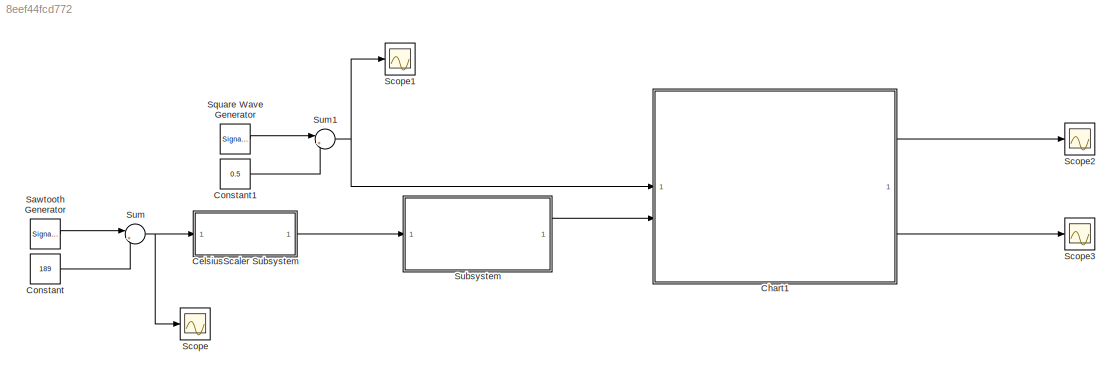
MODEL slx_8eef44fcd772
KIND model
CONFIG AbsTol = auto
CONFIG EnableMultiTasking = on
CONFIG FixedStep = 0.1
CONFIG MaxStep = auto
CONFIG MinStep = auto
CONFIG RelTol = 1e-3
CONFIG SampleTimeConstraint = Unconstrained
CONFIG SolverName = FixedStepDiscrete
CONFIG StartTime = 0.0
CONFIG StopTime = 20.0
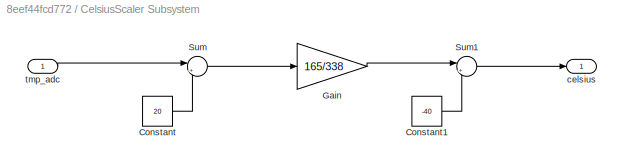
BLOCK [SubSystem] CelsiusScaler Subsystem
BLOCK [Constant] CelsiusScaler Subsystem/Constant
  Value = 20
BLOCK [Constant] CelsiusScaler Subsystem/Constant1
  Value = -40
BLOCK [Gain] CelsiusScaler Subsystem/Gain
  Gain = 165/338
BLOCK [Sum] CelsiusScaler Subsystem/Sum
  Inputs = |+-
BLOCK [Sum] CelsiusScaler Subsystem/Sum1
  Inputs = |++
BLOCK [Outport] CelsiusScaler Subsystem/celsius
BLOCK [Inport] CelsiusScaler Subsystem/tmp_adc
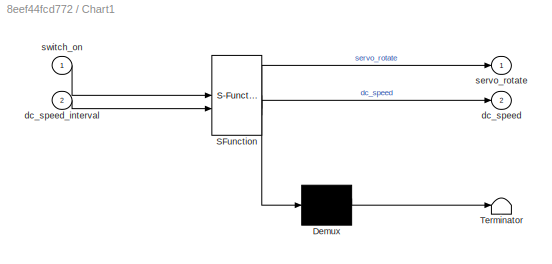
BLOCK [SubSystem] Chart1
  ErrorFcn = Stateflow.Translate.translate
  PermitHierarchicalResolution = ExplicitOnly
  SFBlockType = Chart
  TreatAsAtomicUnit = on
BLOCK [Demux] Chart1/ Demux 
  Outputs = 1
BLOCK [S-Function] Chart1/ SFunction 
  EnableBusSupport = on
  FunctionName = sf_sfun
  PortCounts = [2 3]
  SFcnIsStateOwnerBlock = off
  SFunctionDeploymentMode = off
  Tag = Stateflow S-Function 2
BLOCK [Terminator] Chart1/ Terminator 
BLOCK [Outport] Chart1/dc_speed
  Port = 2
BLOCK [Inport] Chart1/dc_speed_interval
  Port = 2
BLOCK [Outport] Chart1/servo_rotate
BLOCK [Inport] Chart1/switch_on
BLOCK [Constant] Constant
  Value = 189
BLOCK [Constant] Constant1
  Value = 0.5
BLOCK [SignalGenerator] Sawtooth Generator
  Amplitude = 169
  Frequency = 0.25
  WaveForm = sawtooth
BLOCK [Scope] Scope
  Floating = off
  NumInputPorts = 1
  ScopeSpecificationString = Simulink.scopes.TimeScopeBlockCfg('CurrentConfiguration', extmgr.ConfigurationSet(extmgr.Configuration('Core','General UI',true),extmgr.Configuration('Core','Source UI',true),extmgr.Configuration('Sources','WiredSimulink',true),extmgr.Configuration('Visuals','Time Domain',true,'SerializedDisplays',{struct('MinYLimReal','22.49262','MaxYLimReal','31.31053','YLabelReal','','MinYLimMag','22.49262','Ma...<+1460ch>
BLOCK [Scope] Scope1
  Floating = off
  NumInputPorts = 1
  ScopeSpecificationString = Simulink.scopes.TimeScopeBlockCfg('CurrentConfiguration', extmgr.ConfigurationSet(extmgr.Configuration('Core','General UI',true),extmgr.Configuration('Core','Source UI',true),extmgr.Configuration('Sources','WiredSimulink',true,'DataLoggingVariableName','ScopeData1'),extmgr.Configuration('Visuals','Time Domain',true,'SerializedDisplays',{struct('MinYLimReal','-0.125','MaxYLimReal','1.125','YLabelRe...<+1436ch>
BLOCK [Scope] Scope2
  Floating = off
  NumInputPorts = 1
  ScopeSpecificationString = Simulink.scopes.TimeScopeBlockCfg('CurrentConfiguration', extmgr.ConfigurationSet(extmgr.Configuration('Core','General UI',true),extmgr.Configuration('Core','Source UI',true),extmgr.Configuration('Sources','WiredSimulink',true,'DataLoggingVariableName','ScopeData1'),extmgr.Configuration('Visuals','Time Domain',true,'SerializedDisplays',{struct('MinYLimReal','-10','MaxYLimReal','10','YLabelReal',''...<+849ch>
BLOCK [Scope] Scope3
  Floating = off
  NumInputPorts = 1
  ScopeSpecificationString = Simulink.scopes.TimeScopeBlockCfg('CurrentConfiguration', extmgr.ConfigurationSet(extmgr.Configuration('Core','General UI',true),extmgr.Configuration('Core','Source UI',true),extmgr.Configuration('Sources','WiredSimulink',true,'DataLoggingVariableName','ScopeData2'),extmgr.Configuration('Visuals','Time Domain',true,'SerializedDisplays',{struct('MinYLimReal','-10','MaxYLimReal','10','YLabelReal',''...<+849ch>
BLOCK [SignalGenerator] Square Wave Generator
  Amplitude = 0.5
  Frequency = 0.5
  WaveForm = square
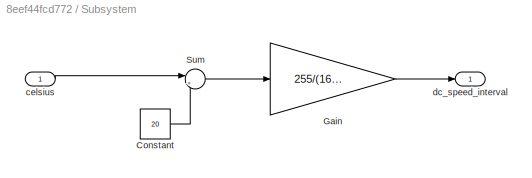
BLOCK [SubSystem] Subsystem
BLOCK [Constant] Subsystem/Constant
  Value = 20
BLOCK [Gain] Subsystem/Gain
  Gain = 255/(16530/60)
BLOCK [Sum] Subsystem/Sum
  Inputs = |+-
BLOCK [Inport] Subsystem/celsius
BLOCK [Outport] Subsystem/dc_speed_interval
BLOCK [Sum] Sum
  Inputs = |++
BLOCK [Sum] Sum1
  Inputs = |++
LINE CelsiusScaler Subsystem/Constant1:1 -> CelsiusScaler Subsystem/Sum1:2
LINE CelsiusScaler Subsystem/Constant:1 -> CelsiusScaler Subsystem/Sum:2
LINE CelsiusScaler Subsystem/Gain:1 -> CelsiusScaler Subsystem/Sum1:1
LINE CelsiusScaler Subsystem/Sum1:1 -> CelsiusScaler Subsystem/celsius:1
LINE CelsiusScaler Subsystem/Sum:1 -> CelsiusScaler Subsystem/Gain:1
LINE CelsiusScaler Subsystem/tmp_adc:1 -> CelsiusScaler Subsystem/Sum:1
LINE CelsiusScaler Subsystem:1 -> Subsystem:1
LINE Chart1:1 -> Scope2:1
LINE Chart1:2 -> Scope3:1
LINE Constant1:1 -> Sum1:2
LINE Constant:1 -> Sum:2
LINE Sawtooth Generator:1 -> Sum:1
LINE Square Wave Generator:1 -> Sum1:1
LINE Subsystem/Constant:1 -> Subsystem/Sum:2
LINE Subsystem/Gain:1 -> Subsystem/dc_speed_interval:1
LINE Subsystem/Sum:1 -> Subsystem/Gain:1
LINE Subsystem/celsius:1 -> Subsystem/Sum:1
LINE Subsystem:1 -> Chart1:2
NET Sum1:1 -> Chart1:1, Scope1:1
NET Sum:1 -> CelsiusScaler Subsystem:1, Scope:1
note: NET lines group one-source signal fan-out (src -> all destinations, sorted); 1:1 wires keep LINE
CHART Chart1 states=6 transitions=10
  STATE_LABEL 'DC_Motor'
  STATE_LABEL 'check'
  STATE_LABEL '[ctr_dc < (DC_PERIOD / STEP_SIZE) - 1]{ctr_dc = ctr_dc + 1}'
  STATE_LABEL '[ctr_dc >= (DC_PERIOD / STEP_SIZE) - 1]{dc_speed = dc_speed_interval; ctr_dc = 0;}'
  STATE_LABEL 'check'
  STATE_LABEL 'Servo_Motor'
  STATE_LABEL 'Natural'
  STATE_LABEL 'ClockWise'
  STATE_LABEL 'Counter_ClockWise'
  STATE_LABEL '[ctr_servo < ((SLOW_MODE_DURATION - (switch_on * (SLOW_MODE_DURATION - FAST_MODE_DURATION))) / STEP_SIZE) - 1]{ctr_servo = ctr_servo + 1}'
  STATE_LABEL '[ctr_servo >= (SERVO_MAX_ANGLE / SERVO_ANGLE_CHANGE) - 1]{servo_rotate = 0; ctr_servo = 0}'
  STATE_LABEL '[ctr_servo >= ((SLOW_MODE_DURATION - (switch_on * (SLOW_MODE_DURATION - FAST_MODE_DURATION))) / STEP_SIZE) - 1]{servo_rotate = 1; ctr_servo = 0}'
  STATE_LABEL '[ctr_servo < (SERVO_MAX_ANGLE / SERVO_ANGLE_CHANGE) - 1]{ctr_servo = ctr_servo + 1}'
  STATE_LABEL '[ctr_servo >= (SERVO_MAX_ANGLE / SERVO_ANGLE_CHANGE) - 1]{servo_rotate = -1; ctr_servo = 0}'
  STATE_LABEL '[ctr_servo < (SERVO_MAX_ANGLE / SERVO_ANGLE_CHANGE) - 1]{ctr_servo = ctr_servo + 1}'
  STATE_LABEL 'Natural'
  STATE_LABEL 'ClockWise'
  STATE_LABEL 'Counter_ClockWise'
CHART  states=0 transitions=0
